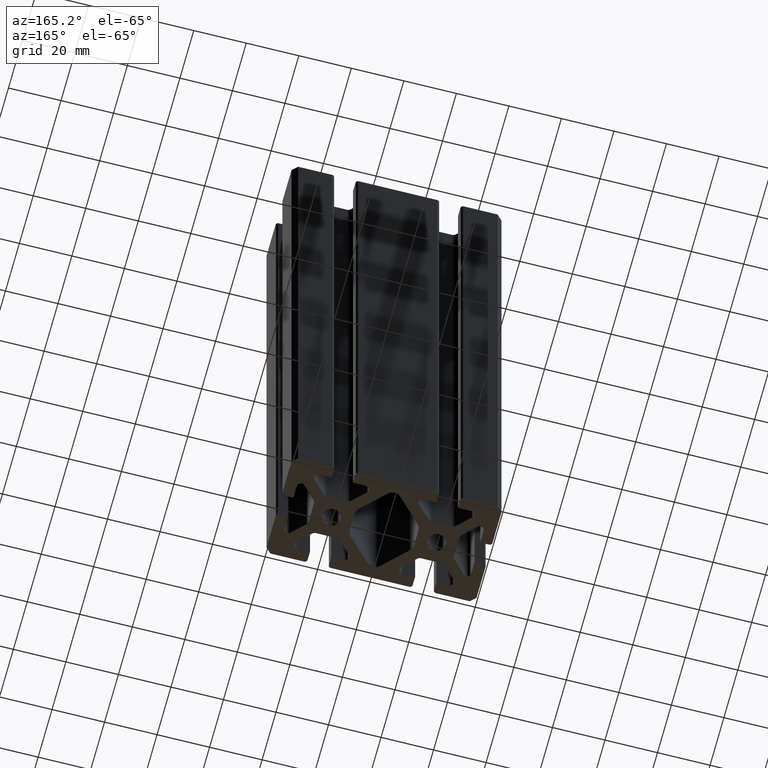
[diagram: clean part render]
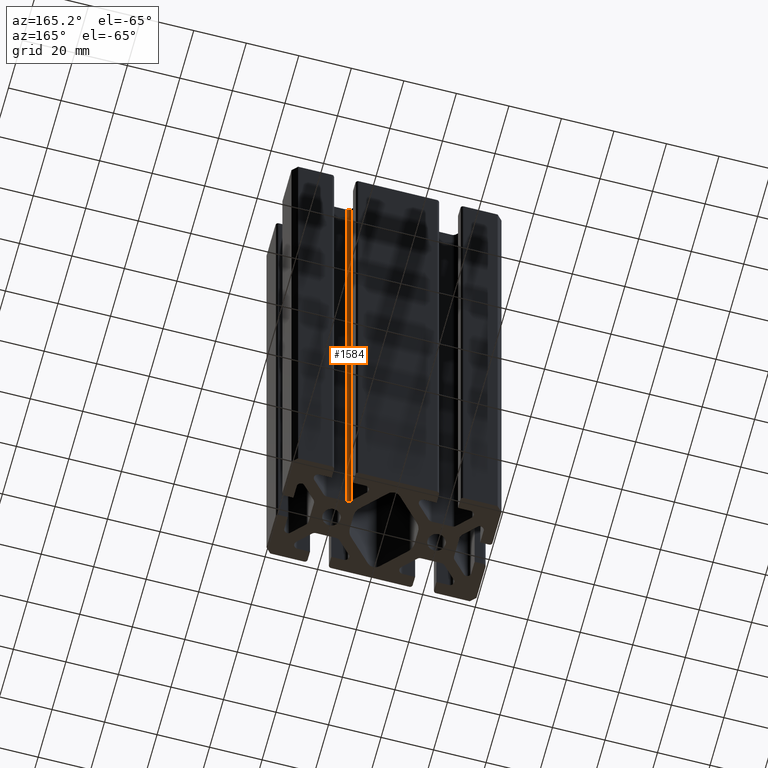
[diagram: same view with one face highlighted and labeled with its STEP entity id]
A machine part, auxiliary view. The second image highlights one B-rep face of the part: STEP entity #1584.
In plain terms, the highlighted cylindrical surface (edge-blend (fillet) strip) has radius 2 mm, axis along (0, 0, -1).
Its self-contained STEP definition (entity closure, byte-faithful):
#213 = VECTOR ( 'NONE', #2527, 1000.000000000000000 ) ;
#285 = VERTEX_POINT ( 'NONE', #3939 ) ;
#335 = DIRECTION ( 'NONE',  ( 1.000000000000000000, -8.673617379884027583E-16, 0.000000000000000000 ) ) ;
#640 = VERTEX_POINT ( 'NONE', #2071 ) ;
#665 = AXIS2_PLACEMENT_3D ( 'NONE', #786, #2012, #1706 ) ;
#704 = VERTEX_POINT ( 'NONE', #3255 ) ;
#776 = EDGE_CURVE ( 'NONE', #285, #1896, #1562, .T. ) ;
#786 = CARTESIAN_POINT ( 'NONE',  ( 16.15589666969905736, 9.705436112038437813, -127.0000000000000000 ) ) ;
#838 = ORIENTED_EDGE ( 'NONE', *, *, #776, .F. ) ;
#856 = ORIENTED_EDGE ( 'NONE', *, *, #2520, .F. ) ;
#904 = CARTESIAN_POINT ( 'NONE',  ( 16.15589666969905736, 7.705436112038436924, 127.0000000000000000 ) ) ;
#992 = AXIS2_PLACEMENT_3D ( 'NONE', #3025, #1241, #335 ) ;
#1113 = DIRECTION ( 'NONE',  ( -0.000000000000000000, 0.000000000000000000, 1.000000000000000000 ) ) ;
#1241 = DIRECTION ( 'NONE',  ( 0.000000000000000000, -0.000000000000000000, -1.000000000000000000 ) ) ;
#1274 = CARTESIAN_POINT ( 'NONE',  ( 14.74168310732596154, 8.291222549665342001, -127.0000000000000000 ) ) ;
#1407 = ORIENTED_EDGE ( 'NONE', *, *, #1564, .F. ) ;
#1436 = CIRCLE ( 'NONE', #3631, 2.000000000000001776 ) ;
#1453 = EDGE_CURVE ( 'NONE', #640, #704, #2221, .T. ) ;
#1562 = LINE ( 'NONE', #904, #213 ) ;
#1564 = EDGE_CURVE ( 'NONE', #704, #285, #1436, .T. ) ;
#1584 = ADVANCED_FACE ( 'NONE', ( #2622 ), #3550, .F. ) ;
#1706 = DIRECTION ( 'NONE',  ( -1.000000000000000000, 0.000000000000000000, 0.000000000000000000 ) ) ;
#1896 = VERTEX_POINT ( 'NONE', #3824 ) ;
#1968 = DIRECTION ( 'NONE',  ( 1.000000000000000000, 0.000000000000000000, 0.000000000000000000 ) ) ;
#2012 = DIRECTION ( 'NONE',  ( 0.000000000000000000, 0.000000000000000000, -1.000000000000000000 ) ) ;
#2071 = CARTESIAN_POINT ( 'NONE',  ( 14.74168310732595977, 8.291222549665342001, 127.0000000000000000 ) ) ;
#2214 = CIRCLE ( 'NONE', #992, 2.000000000000001776 ) ;
#2221 = LINE ( 'NONE', #1274, #3107 ) ;
#2353 = ORIENTED_EDGE ( 'NONE', *, *, #1453, .F. ) ;
#2449 = EDGE_LOOP ( 'NONE', ( #1407, #2353, #856, #838 ) ) ;
#2520 = EDGE_CURVE ( 'NONE', #1896, #640, #2214, .T. ) ;
#2527 = DIRECTION ( 'NONE',  ( -0.000000000000000000, 0.000000000000000000, 1.000000000000000000 ) ) ;
#2622 = FACE_OUTER_BOUND ( 'NONE', #2449, .T. ) ;
#2963 = CARTESIAN_POINT ( 'NONE',  ( 16.15589666969905736, 9.705436112038437813, -127.0000000000000000 ) ) ;
#3025 = CARTESIAN_POINT ( 'NONE',  ( 16.15589666969905736, 9.705436112038437813, 127.0000000000000000 ) ) ;
#3107 = VECTOR ( 'NONE', #3763, 1000.000000000000000 ) ;
#3255 = CARTESIAN_POINT ( 'NONE',  ( 14.74168310732595977, 8.291222549665342001, -127.0000000000000000 ) ) ;
#3550 = CYLINDRICAL_SURFACE ( 'NONE', #665, 2.000000000000000000 ) ;
#3631 = AXIS2_PLACEMENT_3D ( 'NONE', #2963, #1113, #1968 ) ;
#3763 = DIRECTION ( 'NONE',  ( 0.000000000000000000, -0.000000000000000000, -1.000000000000000000 ) ) ;
#3824 = CARTESIAN_POINT ( 'NONE',  ( 16.15589666969905736, 7.705436112038436924, 127.0000000000000000 ) ) ;
#3939 = CARTESIAN_POINT ( 'NONE',  ( 16.15589666969905736, 7.705436112038436924, -127.0000000000000000 ) ) ;